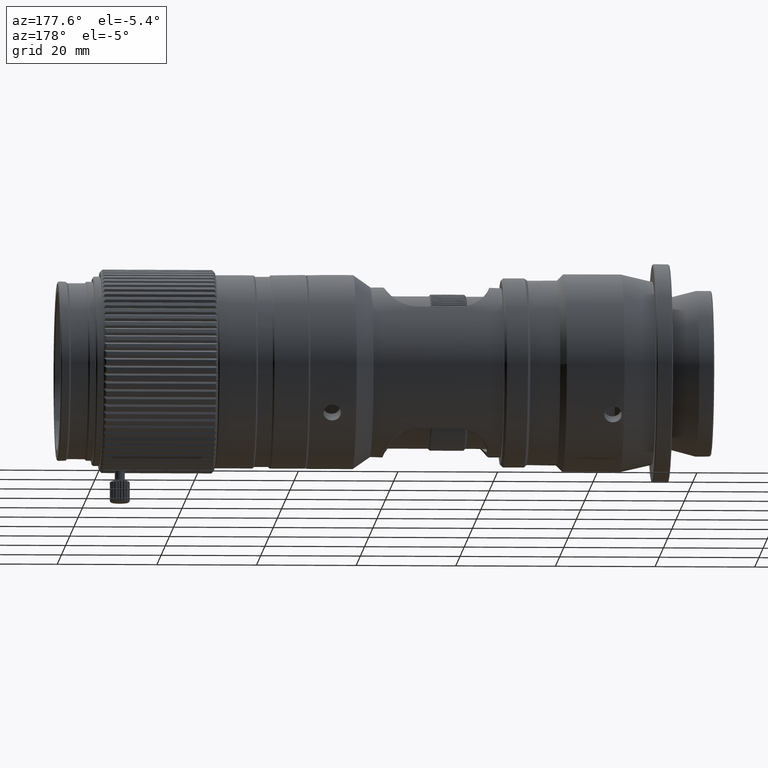
[diagram: clean part render]
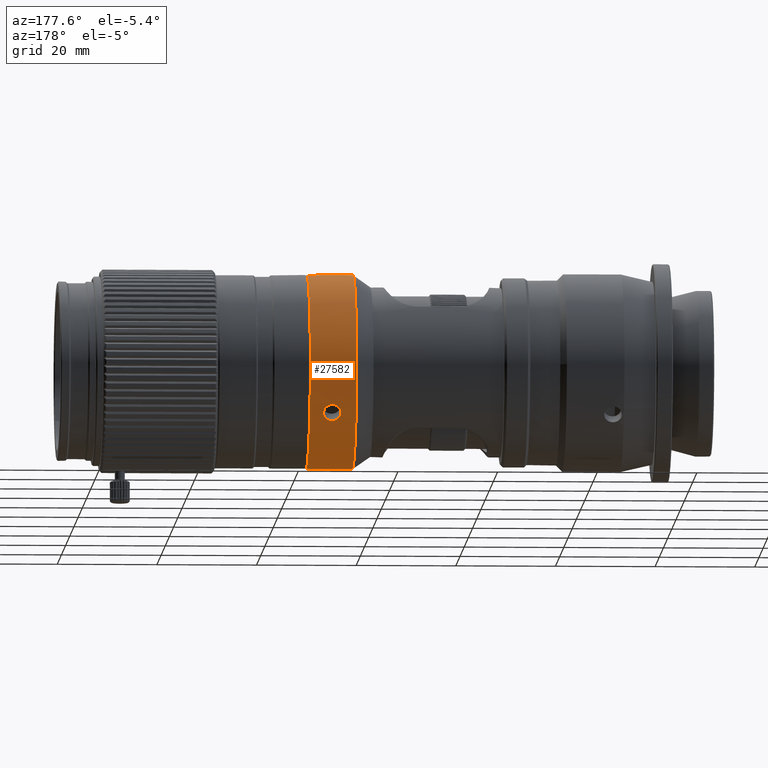
[diagram: same view with one face highlighted and labeled with its STEP entity id]
A machine part, auxiliary view. The second image highlights one B-rep face of the part: STEP entity #27582.
In plain terms, the highlighted cylindrical surface (bore or boss wall) has radius 19.5 mm, axis along (1, -0, 0).
Its self-contained STEP definition (entity closure, byte-faithful):
#478 = ORIENTED_EDGE ( 'NONE', *, *, #12250, .T. ) ;
#829 = FACE_BOUND ( 'NONE', #6289, .T. ) ;
#858 = EDGE_LOOP ( 'NONE', ( #8032 ) ) ;
#999 = CARTESIAN_POINT ( 'NONE',  ( 70.07379490684991197, 42.05459221979604933, 4.492853905267186754 ) ) ;
#1041 = CARTESIAN_POINT ( 'NONE',  ( 70.18771054272687593, 24.36039999712551563, 35.14038600535543111 ) ) ;
#1182 = CARTESIAN_POINT ( 'NONE',  ( 65.15708914656502770, 26.11023935412958252, 15.71905592086952907 ) ) ;
#1193 = FACE_BOUND ( 'NONE', #28471, .T. ) ;
#1229 = CARTESIAN_POINT ( 'NONE',  ( 70.18706113801275137, 27.84896984241966322, 35.14139661075519427 ) ) ;
#1362 = CARTESIAN_POINT ( 'NONE',  ( 71.61921687256733549, 43.27221541918056147, 6.460124031771034225 ) ) ;
#1400 = CARTESIAN_POINT ( 'NONE',  ( 69.72854287973886755, 27.86007871138743042, 35.14038600533253032 ) ) ;
#1405 = ORIENTED_EDGE ( 'NONE', *, *, #27595, .T. ) ;
#1540 = CARTESIAN_POINT ( 'NONE',  ( 69.72874267319788544, 43.79980922470844718, 7.513593337954950435 ) ) ;
#1599 = CARTESIAN_POINT ( 'NONE',  ( 74.45812653004784920, 26.11023935412957897, 15.71905592086952907 ) ) ;
#1921 = CARTESIAN_POINT ( 'NONE',  ( 68.20804687655545706, 9.166262394104030875, 6.066870601132161589 ) ) ;
#2280 = CARTESIAN_POINT ( 'NONE',  ( 69.84246244167948703, 10.16588666146286712, 4.492853659559094659 ) ) ;
#2414 = CARTESIAN_POINT ( 'NONE',  ( 69.95812653004817605, 43.80459204679520724, 7.523942572809223073 ) ) ;
#2615 = CARTESIAN_POINT ( 'NONE',  ( 70.07379490684898826, 8.415886787764771171, 7.523942300108700465 ) ) ;
#3131 = CARTESIAN_POINT ( 'NONE',  ( 65.15708914656502770, 6.610239354127227962, 15.71905592086952907 ) ) ;
#3350 = CARTESIAN_POINT ( 'NONE',  ( 71.69677242564434039, 25.88085548576956185, 35.21802765881768948 ) ) ;
#3452 = ORIENTED_EDGE ( 'NONE', *, *, #6412, .T. ) ;
#3479 = CARTESIAN_POINT ( 'NONE',  ( 68.21939614039901301, 42.88238294984343213, 5.771302396925304556 ) ) ;
#3512 = CARTESIAN_POINT ( 'NONE',  ( 71.47704216468960681, 25.23361692147433644, 35.19957431822407301 ) ) ;
#3597 = CARTESIAN_POINT ( 'NONE',  ( 69.95812653004816184, 10.16588666146286890, 4.492853659559094659 ) ) ;
#3687 = CARTESIAN_POINT ( 'NONE',  ( 69.50471790797725191, 24.41612736612321299, 35.14533930601878353 ) ) ;
#3824 = CARTESIAN_POINT ( 'NONE',  ( 71.70796593194224045, 42.88293048186979206, 5.770237959070459333 ) ) ;
#4004 = CARTESIAN_POINT ( 'NONE',  ( 71.69685695719532248, 43.11131822904258826, 6.167829925293569104 ) ) ;
#4039 = CARTESIAN_POINT ( 'NONE',  ( 68.56617989957898374, 27.17703649248084474, 35.19008588180271602 ) ) ;
#4176 = CARTESIAN_POINT ( 'NONE',  ( 68.25433327160101271, 43.22398378421782894, 6.369504003939394643 ) ) ;
#4382 = CARTESIAN_POINT ( 'NONE',  ( 71.47567879304338589, 26.98917114629115588, 35.19946833202516956 ) ) ;
#4565 = CARTESIAN_POINT ( 'NONE',  ( 70.41122752206636903, 8.439504652561746312, 7.473109430494253580 ) ) ;
#5086 = CARTESIAN_POINT ( 'NONE',  ( 68.38463662284807754, 8.848591570861469080, 6.647299860267561478 ) ) ;
#5251 = CARTESIAN_POINT ( 'NONE',  ( 69.08150538026583831, 10.03342094561782538, 4.683206946106120760 ) ) ;
#5761 = DIRECTION ( 'NONE',  ( -1.000000000000000000, 2.991356025220534629E-16, -2.465190328815661892E-32 ) ) ;
#6284 = CARTESIAN_POINT ( 'NONE',  ( 68.42895718678768446, 43.42195611137031364, 6.741370674503478710 ) ) ;
#6289 = EDGE_LOOP ( 'NONE', ( #1405 ) ) ;
#6317 = CARTESIAN_POINT ( 'NONE',  ( 70.41153444971378406, 27.80435151807208527, 35.14533929059518869 ) ) ;
#6412 = EDGE_CURVE ( 'NONE', #28563, #28563, #30160, .T. ) ;
#6451 = DIRECTION ( 'NONE',  ( 0.000000000000000000, 0.000000000000000000, -1.000000000000000000 ) ) ;
#6626 = CARTESIAN_POINT ( 'NONE',  ( 70.41122752206986490, 42.08680584383117917, 4.538724010972130962 ) ) ;
#6633 = B_SPLINE_CURVE_WITH_KNOTS ( 'NONE', 3,
 ( #19943, #28172, #1540, #25019, #17317, #24845, #20123, #14327, #25552, #30816, #6284, #4176, #27655, #22568, #3479, #12223, #11523, #30631, #22211, #9606, #20299, #30980, #32883, #8909, #16969, #19603, #30288, #999, #9255, #6626, #11697, #17144, #22397, #33076, #33245, #6816, #27827, #28008, #3824, #14510, #4004, #14689, #1362, #31331, #26247, #12413, #21153, #23095, #10460, #31665, #25902, #31155, #15737, #2414 ),
 .UNSPECIFIED., .T., .F.,
 ( 4, 2, 2, 2, 2, 2, 2, 2, 2, 2, 2, 2, 2, 2, 2, 2, 2, 2, 2, 2, 2, 2, 2, 2, 2, 2, 4 ),
 ( 0.000000000000000000, 0.0003420537383288069872, 0.0006841074766576139745, 0.001026161214986420853, 0.001368214953315227949, 0.002052322429972871197, 0.002736429906630514879, 0.003078483644959332383, 0.003420537383288149887, 0.003762591121616967824, 0.004104644859945785762, 0.004446698598274604133, 0.004788752336603421637, 0.005472859813261051441, 0.005814913551589846394, 0.006156967289918641346, 0.006499021028247436299, 0.006841074766576230384, 0.007525182243233841974, 0.008209289719891453563, 0.008551343458220261526, 0.008893397196549067754, 0.009235450934877875717, 0.009577504673206681945, 0.009919558411535488174, 0.01026161214986429614, 0.01094571962652194502 ),
 .UNSPECIFIED. ) ;
#6670 = CARTESIAN_POINT ( 'NONE',  ( 71.27644108891041697, 27.26691075445793189, 35.18489266199406984 ) ) ;
#6816 = CARTESIAN_POINT ( 'NONE',  ( 71.35692666306096044, 42.43455046851548929, 5.051675558385241516 ) ) ;
#6852 = CARTESIAN_POINT ( 'NONE',  ( 69.07717418262579656, 27.63941000730244824, 35.15920286302360864 ) ) ;
#7018 = CARTESIAN_POINT ( 'NONE',  ( 69.84517619526280896, 24.36015967868009469, 35.14036435094310917 ) ) ;
#7191 = CARTESIAN_POINT ( 'NONE',  ( 68.42895718679943684, 9.679477484959605249, 5.215512049186138199 ) ) ;
#7706 = CARTESIAN_POINT ( 'NONE',  ( 68.89133290666570986, 9.961707570402445810, 4.788412117140327773 ) ) ;
#8032 = ORIENTED_EDGE ( 'NONE', *, *, #13778, .F. ) ;
#8054 = CARTESIAN_POINT ( 'NONE',  ( 70.18945470678553988, 10.16588666146286890, 4.492853659559094659 ) ) ;
#8859 = CARTESIAN_POINT ( 'NONE',  ( 71.47687393295743163, 9.678060438618503625, 5.219412840321658642 ) ) ;
#8909 = CARTESIAN_POINT ( 'NONE',  ( 69.07919887396973024, 42.18783047183382706, 4.684333184738014744 ) ) ;
#9086 = FACE_OUTER_BOUND ( 'NONE', #15524, .T. ) ;
#9119 = CARTESIAN_POINT ( 'NONE',  ( 71.02458574713325845, 27.50241612376452593, 35.16939965471883767 ) ) ;
#9205 = CARTESIAN_POINT ( 'NONE',  ( 71.48729657715028907, 8.798523206933545282, 6.741369504913817146 ) ) ;
#9255 = CARTESIAN_POINT ( 'NONE',  ( 70.18751444422679242, 42.06116365219143916, 4.502170771558888340 ) ) ;
#9292 = CARTESIAN_POINT ( 'NONE',  ( 70.41804917717000478, 24.40644615998366618, 35.14467727046672252 ) ) ;
#9432 = CYLINDRICAL_SURFACE ( 'NONE', #32926, 19.49999999999999645 ) ;
#9471 = CARTESIAN_POINT ( 'NONE',  ( 69.08125860185757006, 24.59149181203768109, 35.15992610329546864 ) ) ;
#9492 = DIRECTION ( 'NONE',  ( -1.000000000000000000, 3.500072587090658521E-16, -2.465190328815661892E-32 ) ) ;
#9606 = CARTESIAN_POINT ( 'NONE',  ( 68.56595224969292701, 42.43942932988120731, 5.059948853037987249 ) ) ;
#9642 = CARTESIAN_POINT ( 'NONE',  ( 70.52064364052661460, 27.77132991372726778, 35.14822754141417249 ) ) ;
#9805 = CARTESIAN_POINT ( 'NONE',  ( 70.18751444422497343, 8.420669714459300792, 7.513592839569271931 ) ) ;
#9978 = CARTESIAN_POINT ( 'NONE',  ( 71.02492223610236977, 8.569758953672838686, 7.199337612002087106 ) ) ;
#10460 = CARTESIAN_POINT ( 'NONE',  ( 71.02643860588568714, 43.65019637851938938, 7.198260793676701574 ) ) ;
#10502 = CARTESIAN_POINT ( 'NONE',  ( 68.63821849157534416, 8.674809948038737062, 6.986215112189682941 ) ) ;
#11523 = CARTESIAN_POINT ( 'NONE',  ( 68.29703647377331777, 42.70969715062488348, 5.485813859868279962 ) ) ;
#11560 = CARTESIAN_POINT ( 'NONE',  ( 68.64004495430565100, 27.26703509442617701, 35.18488129127201347 ) ) ;
#11697 = CARTESIAN_POINT ( 'NONE',  ( 70.52238423562108949, 42.10618855728080945, 4.566408187190802437 ) ) ;
#11863 = DIRECTION ( 'NONE',  ( 0.000000000000000000, -1.000000000000000000, 0.000000000000000000 ) ) ;
#11906 = CARTESIAN_POINT ( 'NONE',  ( 70.83908015949138814, 24.58106938564199595, 35.15920291809720766 ) ) ;
#12085 = CARTESIAN_POINT ( 'NONE',  ( 68.26395835265002177, 26.56334050868623109, 35.21411209137370690 ) ) ;
#12223 = CARTESIAN_POINT ( 'NONE',  ( 68.26401468619333457, 42.76674435210632197, 5.578866464021822402 ) ) ;
#12250 = EDGE_CURVE ( 'NONE', #29923, #29923, #18763, .T. ) ;
#12413 = CARTESIAN_POINT ( 'NONE',  ( 71.35030193156001133, 43.50589117283462315, 6.907114787801980071 ) ) ;
#12612 = CARTESIAN_POINT ( 'NONE',  ( 70.73426602740237001, 8.491380889035161417, 7.362754779318104070 ) ) ;
#12785 = CARTESIAN_POINT ( 'NONE',  ( 68.29703647378589437, 8.948262867970678158, 6.460124810573783627 ) ) ;
#12967 = CARTESIAN_POINT ( 'NONE',  ( 69.95812653004816184, 10.16588666146286890, 4.492853659559094659 ) ) ;
#13302 = CARTESIAN_POINT ( 'NONE',  ( 71.35692666305035914, 8.709861411187430846, 6.915477977785801755 ) ) ;
#13778 = EDGE_CURVE ( 'NONE', #32214, #32214, #23789, .T. ) ;
#14033 = CARTESIAN_POINT ( 'NONE',  ( 71.65229565745404727, 25.65714170783025239, 35.21411217416827100 ) ) ;
#14111 = CARTESIAN_POINT ( 'NONE',  ( 70.83705676272900575, 10.03264738112484267, 4.684334430654736536 ) ) ;
#14189 = CARTESIAN_POINT ( 'NONE',  ( 71.35007472692137753, 25.04344424174199801, 35.19008599396246240 ) ) ;
#14327 = CARTESIAN_POINT ( 'NONE',  ( 68.89133290665749598, 43.65072045975615822, 7.199339064235977581 ) ) ;
#14364 = CARTESIAN_POINT ( 'NONE',  ( 68.38572607607733289, 25.33356921996190891, 35.20387112215994563 ) ) ;
#14510 = CARTESIAN_POINT ( 'NONE',  ( 71.70820618342388286, 43.05421622101498258, 6.066870439832094952 ) ) ;
#14557 = CARTESIAN_POINT ( 'NONE',  ( 71.66242562599607879, 26.56904561697340839, 35.21481074912161091 ) ) ;
#14689 = CARTESIAN_POINT ( 'NONE',  ( 71.65223855476425285, 43.22015317459462835, 6.364193549576292241 ) ) ;
#14723 = CARTESIAN_POINT ( 'NONE',  ( 69.72919155584746420, 24.37150890231629319, 35.14139661410138871 ) ) ;
#14812 = EDGE_LOOP ( 'NONE', ( #3452 ) ) ;
#14859 = FACE_OUTER_BOUND ( 'NONE', #858, .T. ) ;
#15077 = CARTESIAN_POINT ( 'NONE',  ( 71.53052559014122380, 26.88691228698944613, 35.20387100936596170 ) ) ;
#15416 = CARTESIAN_POINT ( 'NONE',  ( 68.55932749556367867, 9.785929066706884782, 5.051674291824166829 ) ) ;
#15494 = ORIENTED_EDGE ( 'NONE', *, *, #27213, .T. ) ;
#15524 = EDGE_LOOP ( 'NONE', ( #478 ) ) ;
#15581 = CARTESIAN_POINT ( 'NONE',  ( 69.95812653004817605, 10.16588666146286535, 4.492853659559094659 ) ) ;
#15737 = CARTESIAN_POINT ( 'NONE',  ( 70.18945470678728782, 43.80459204679520013, 7.523942572809226625 ) ) ;
#15771 = CARTESIAN_POINT ( 'NONE',  ( 68.25433327161404407, 9.456417665008830298, 5.572894449026144947 ) ) ;
#15937 = CARTESIAN_POINT ( 'NONE',  ( 69.72680336153541703, 8.415886408887647718, 7.523943118155420606 ) ) ;
#16969 = CARTESIAN_POINT ( 'NONE',  ( 69.18145769171991333, 42.15658544601902946, 4.639041321919038730 ) ) ;
#17003 = CARTESIAN_POINT ( 'NONE',  ( 68.25382645429563411, 25.65143657339129746, 35.21481083601376838 ) ) ;
#17144 = CARTESIAN_POINT ( 'NONE',  ( 70.73426602740831015, 42.15643765693928913, 4.638827475199744477 ) ) ;
#17179 = CARTESIAN_POINT ( 'NONE',  ( 71.70812653004821868, 26.11023935412958608, 35.21905592086952907 ) ) ;
#17317 = CARTESIAN_POINT ( 'NONE',  ( 69.39387221592008359, 43.76669070947291829, 7.442482480918648946 ) ) ;
#17365 = CARTESIAN_POINT ( 'NONE',  ( 71.70812653004821868, 26.34156744190340049, 35.21905592086952907 ) ) ;
#17528 = CARTESIAN_POINT ( 'NONE',  ( 71.11297590556058879, 27.43015030730950343, 35.17450564160657223 ) ) ;
#17702 = CARTESIAN_POINT ( 'NONE',  ( 68.63981037044885625, 24.95356975750582507, 35.18489277021963346 ) ) ;
#17874 = CARTESIAN_POINT ( 'NONE',  ( 68.43937986427469866, 8.801191658018616693, 6.738194236073396404 ) ) ;
#18052 = CARTESIAN_POINT ( 'NONE',  ( 68.26401468620620960, 9.000325186314737991, 6.364194182799950639 ) ) ;
#18396 = CARTESIAN_POINT ( 'NONE',  ( 68.20828712842842378, 9.337548412665558573, 5.770237636477527410 ) ) ;
#18575 = CARTESIAN_POINT ( 'NONE',  ( 69.49932425648306378, 8.435043785862456289, 7.482233276298646985 ) ) ;
#18746 = CARTESIAN_POINT ( 'NONE',  ( 70.73479824539332128, 10.06389244512166492, 4.639042504724003813 ) ) ;
#18763 = CIRCLE ( 'NONE', #32738, 19.49999999999999645 ) ;
#18867 = VERTEX_POINT ( 'NONE', #34443 ) ;
#19603 = CARTESIAN_POINT ( 'NONE',  ( 69.49932425647955370, 42.08113479493397335, 4.530298864185369645 ) ) ;
#19772 = FACE_BOUND ( 'NONE', #14812, .T. ) ;
#19805 = CARTESIAN_POINT ( 'NONE',  ( 70.83499319319470544, 27.62898761328224850, 35.15992604666694632 ) ) ;
#19892 = CARTESIAN_POINT ( 'NONE',  ( 71.53161700841518211, 9.623043622175202927, 5.305909466479667103 ) ) ;
#19943 = CARTESIAN_POINT ( 'NONE',  ( 69.95812653004817605, 43.80459204679520724, 7.523942572809223073 ) ) ;
#19980 = CARTESIAN_POINT ( 'NONE',  ( 68.80327564247920691, 24.79032970574613870, 35.17450573117650947 ) ) ;
#20123 = CARTESIAN_POINT ( 'NONE',  ( 69.08150538025913079, 43.70597412287381189, 7.314047254481673477 ) ) ;
#20168 = CARTESIAN_POINT ( 'NONE',  ( 68.44057280143451294, 25.23131006842518786, 35.19946844634098682 ) ) ;
#20299 = CARTESIAN_POINT ( 'NONE',  ( 68.63821849156536814, 42.39081604470485587, 4.985951533656164614 ) ) ;
#20331 = CARTESIAN_POINT ( 'NONE',  ( 68.56737288458666058, 25.04192745859836222, 35.19000090424619742 ) ) ;
#20504 = CARTESIAN_POINT ( 'NONE',  ( 70.52238423561674097, 8.453788495725028440, 7.442481420143520765 ) ) ;
#20677 = CARTESIAN_POINT ( 'NONE',  ( 71.11492071848206820, 8.602180298271475678, 7.132764382266877590 ) ) ;
#21153 = CARTESIAN_POINT ( 'NONE',  ( 71.27803590985278959, 43.54566806272900692, 6.986213720055509668 ) ) ;
#21545 = CARTESIAN_POINT ( 'NONE',  ( 71.27803590984267146, 9.829661806666759816, 4.985952833783287907 ) ) ;
#21923 = CARTESIAN_POINT ( 'NONE',  ( 71.70812653004821868, 26.11023935412958608, 35.21905592086952907 ) ) ;
#22211 = CARTESIAN_POINT ( 'NONE',  ( 68.43937986426324471, 42.54241756910147387, 5.219411743132507553 ) ) ;
#22346 = CARTESIAN_POINT ( 'NONE',  ( 71.69685695718202112, 9.338095567205497716, 5.771302721260971325 ) ) ;
#22397 = CARTESIAN_POINT ( 'NONE',  ( 70.83475025056191043, 42.18705861233761567, 4.683208183601235142 ) ) ;
#22523 = CARTESIAN_POINT ( 'NONE',  ( 71.61921687255457414, 9.510781093720776624, 5.485814613967169073 ) ) ;
#22568 = CARTESIAN_POINT ( 'NONE',  ( 68.20804687654212728, 42.94126552308119926, 5.871234092236716329 ) ) ;
#22604 = CARTESIAN_POINT ( 'NONE',  ( 68.38546681893193124, 26.88637981665555188, 35.20389214786794696 ) ) ;
#22779 = CARTESIAN_POINT ( 'NONE',  ( 71.27620967547127862, 24.95344538373159082, 35.18488139742269993 ) ) ;
#22968 = CARTESIAN_POINT ( 'NONE',  ( 70.07107668364372444, 27.86031902945218164, 35.14036435095455602 ) ) ;
#23095 = CARTESIAN_POINT ( 'NONE',  ( 71.11479632547734298, 43.61840509658883747, 7.132971860510775919 ) ) ;
#23301 = CARTESIAN_POINT ( 'NONE',  ( 70.83475025055523133, 8.514505232249431899, 7.314045899854636268 ) ) ;
#23325 = DIRECTION ( 'NONE',  ( 0.000000000000000000, 0.000000000000000000, -1.000000000000000000 ) ) ;
#23654 = CARTESIAN_POINT ( 'NONE',  ( 69.39387221592441790, 10.11429082115268585, 4.566407226462452229 ) ) ;
#23789 = CIRCLE ( 'NONE', #28256, 19.50000000000235545 ) ;
#23822 = CARTESIAN_POINT ( 'NONE',  ( 69.72874267319960495, 10.15931537221279690, 4.502170322415111947 ) ) ;
#23997 = CARTESIAN_POINT ( 'NONE',  ( 71.70820618341055308, 9.279213092057227996, 5.871234253550007942 ) ) ;
#24166 = CARTESIAN_POINT ( 'NONE',  ( 74.45812653004784920, 26.11023935412957897, -3.780944079130467372 ) ) ;
#24719 = CARTESIAN_POINT ( 'NONE',  ( 71.61862922085288119, 25.54598458388145232, 35.21117877659180095 ) ) ;
#24845 = CARTESIAN_POINT ( 'NONE',  ( 69.18198986279190876, 43.72909842613013609, 7.362756059597838743 ) ) ;
#25019 = CARTESIAN_POINT ( 'NONE',  ( 69.50502914447697833, 43.78097447002866005, 7.473110318973215094 ) ) ;
#25245 = CARTESIAN_POINT ( 'NONE',  ( 69.49820460526993315, 27.81403269490257202, 35.14467725638942142 ) ) ;
#25415 = CARTESIAN_POINT ( 'NONE',  ( 68.88206151133012156, 27.50904090396161550, 35.16949265548505821 ) ) ;
#25552 = CARTESIAN_POINT ( 'NONE',  ( 68.80133416104359867, 43.61829912225041284, 7.132765834292729146 ) ) ;
#25902 = CARTESIAN_POINT ( 'NONE',  ( 70.73479824539927563, 43.72898590130282770, 7.362518567834888117 ) ) ;
#25937 = CARTESIAN_POINT ( 'NONE',  ( 68.80133416105240940, 9.920264130812915582, 4.849776434016247251 ) ) ;
#26109 = CARTESIAN_POINT ( 'NONE',  ( 68.88981651168435860, 8.570281630664076999, 7.198262233047774572 ) ) ;
#26235 = VERTEX_POINT ( 'NONE', #27102 ) ;
#26247 = CARTESIAN_POINT ( 'NONE',  ( 71.47687393296907032, 43.41928645032265166, 6.738193080805976010 ) ) ;
#26461 = CARTESIAN_POINT ( 'NONE',  ( 68.56595224970348568, 8.714586863846808029, 6.907116112575217848 ) ) ;
#27102 = CARTESIAN_POINT ( 'NONE',  ( 71.70812653004819026, 26.11023935412958252, 35.21905592086952907 ) ) ;
#27213 = EDGE_CURVE ( 'NONE', #26235, #26235, #30090, .T. ) ;
#27353 = CARTESIAN_POINT ( 'NONE',  ( 71.70812653004821868, 25.99457531024269485, 35.21905592086952907 ) ) ;
#27450 = CARTESIAN_POINT ( 'NONE',  ( 71.35030193154931055, 9.781048566870651939, 5.059950097041631345 ) ) ;
#27494 = DIRECTION ( 'NONE',  ( 1.000000000000000000, -3.500072587090658521E-16, 2.465190328815661892E-32 ) ) ;
#27526 = CARTESIAN_POINT ( 'NONE',  ( 71.53078761491308057, 25.33410164465474068, 35.20389225901331542 ) ) ;
#27582 = ADVANCED_FACE ( 'NONE', ( #14859, #9086, #19772, #1193, #829 ), #9432, .T. ) ;
#27595 = EDGE_CURVE ( 'NONE', #18867, #18867, #6633, .T. ) ;
#27655 = CARTESIAN_POINT ( 'NONE',  ( 68.20828712841505137, 43.11251419679219055, 6.167888617953879660 ) ) ;
#27692 = CARTESIAN_POINT ( 'NONE',  ( 68.21948116661152994, 26.33962716934532367, 35.21802761113063696 ) ) ;
#27827 = CARTESIAN_POINT ( 'NONE',  ( 71.48729657716194197, 42.54100193116437367, 5.215513162283858861 ) ) ;
#27956 = CARTESIAN_POINT ( 'NONE',  ( 71.66191993921390235, 8.996495282851711295, 6.369503353654060618 ) ) ;
#28008 = CARTESIAN_POINT ( 'NONE',  ( 71.66191993922686265, 42.76406142700515289, 5.572895084901728247 ) ) ;
#28046 = CARTESIAN_POINT ( 'NONE',  ( 68.29762497458307280, 26.67449742348803454, 35.21117867960683157 ) ) ;
#28172 = CARTESIAN_POINT ( 'NONE',  ( 69.84246244167863438, 43.80459204679520724, 7.523942572809221296 ) ) ;
#28209 = CARTESIAN_POINT ( 'NONE',  ( 71.34887862288299232, 27.17855325110448561, 35.19000079320453267 ) ) ;
#28256 = AXIS2_PLACEMENT_3D ( 'NONE', #1182, #5761, #11863 ) ;
#28384 = CARTESIAN_POINT ( 'NONE',  ( 68.43921235122425628, 26.98686428751705435, 35.19957420453219754 ) ) ;
#28471 = EDGE_LOOP ( 'NONE', ( #15494 ) ) ;
#28563 = VERTEX_POINT ( 'NONE', #15581 ) ;
#29081 = CARTESIAN_POINT ( 'NONE',  ( 68.21939614041217226, 9.109160293940531616, 6.167830253051253209 ) ) ;
#29923 = VERTEX_POINT ( 'NONE', #24166 ) ;
#30058 = CARTESIAN_POINT ( 'NONE',  ( 70.41693238317670023, 10.13934333205707539, 4.530299691649074312 ) ) ;
#30090 = B_SPLINE_CURVE_WITH_KNOTS ( 'NONE', 3,
 ( #21923, #27353, #3350, #14033, #24719, #27526, #3512, #14189, #22779, #30668, #11906, #9292, #1041, #7018, #14723, #3687, #31015, #33457, #9471, #33644, #19980, #17702, #20331, #20168, #14364, #17003, #30325, #30853, #27692, #12085, #28046, #22604, #28384, #4039, #11560, #25415, #6852, #25245, #1400, #22968, #1229, #6317, #9642, #33282, #19805, #9119, #17528, #6670, #28209, #4382, #15077, #14557, #17365, #17179 ),
 .UNSPECIFIED., .T., .F.,
 ( 4, 2, 2, 2, 2, 2, 2, 2, 2, 2, 2, 2, 2, 2, 2, 2, 2, 2, 2, 2, 2, 2, 2, 2, 2, 2, 4 ),
 ( 0.000000000000000000, 0.0003420537722466805968, 0.0006841075444933611936, 0.001026161316740041574, 0.001368215088986722387, 0.002052322633480111770, 0.002736430177973501587, 0.003078483950220217528, 0.003420537722466933470, 0.003762591494713648978, 0.004104645266960364920, 0.004446699039207081296, 0.004788752811453796804, 0.005472860355947244300, 0.005814914128193966747, 0.006156967900440690061, 0.006499021672687414243, 0.006841075444934136690, 0.007525182989427582451, 0.008209290533921028213, 0.008551344306167732445, 0.008893398078414433208, 0.009235451850661135706, 0.009577505622907838204, 0.009919559395154540701, 0.01026161316740124493, 0.01094572071189466554 ),
 .UNSPECIFIED. ) ;
#30160 = B_SPLINE_CURVE_WITH_KNOTS ( 'NONE', 3,
 ( #12967, #2280, #23822, #34500, #23654, #34323, #5251, #7706, #25937, #15416, #7191, #15771, #18396, #1921, #29081, #18052, #12785, #5086, #17874, #26461, #10502, #33974, #26109, #31874, #31370, #18575, #15937, #2615, #9805, #4565, #20504, #12612, #23301, #9978, #20677, #13302, #9205, #27956, #33031, #23997, #22346, #34676, #22523, #19892, #8859, #27450, #21545, #30578, #32049, #14111, #18746, #30058, #8054, #3597 ),
 .UNSPECIFIED., .T., .F.,
 ( 4, 2, 2, 2, 2, 2, 2, 2, 2, 2, 2, 2, 2, 2, 2, 2, 2, 2, 2, 2, 2, 2, 2, 2, 2, 2, 4 ),
 ( 0.000000000000000000, 0.0003420537383261814833, 0.0006841074766523629665, 0.001026161214978544558, 0.001368214953304725933, 0.002052322429957119908, 0.002736429906609513883, 0.003078483644935711954, 0.003420537383261909592, 0.003762591121588107664, 0.004104644859914305735, 0.004446698598240502939, 0.004788752336566701011, 0.005472859813219136185, 0.005814913551545352471, 0.006156967289871569625, 0.006499021028197785911, 0.006841074766524003065, 0.007525182243176407014, 0.008209289719828810963, 0.008551343458155015106, 0.008893397196481220984, 0.009235450934807425127, 0.009577504673133629270, 0.009919558411459833414, 0.01026161214978603929, 0.01094571962643844931 ),
 .UNSPECIFIED. ) ;
#30288 = CARTESIAN_POINT ( 'NONE',  ( 69.72680336153371172, 42.05459170078538733, 4.492853168126607066 ) ) ;
#30325 = CARTESIAN_POINT ( 'NONE',  ( 68.20812594776113258, 25.87891613820659842, 35.21905597312608904 ) ) ;
#30578 = CARTESIAN_POINT ( 'NONE',  ( 71.11479632546846119, 9.920389567582340362, 4.849581644437976458 ) ) ;
#30631 = CARTESIAN_POINT ( 'NONE',  ( 68.38463662283619726, 42.59743445118938610, 5.305908459695197088 ) ) ;
#30668 = CARTESIAN_POINT ( 'NONE',  ( 71.03419301800252583, 24.71143887289867180, 35.16949273622178396 ) ) ;
#30816 = CARTESIAN_POINT ( 'NONE',  ( 68.55932749555296368, 43.51061798047162910, 6.915479327252109343 ) ) ;
#30853 = CARTESIAN_POINT ( 'NONE',  ( 68.20812682120003956, 26.22590756968152093, 35.21905589474052789 ) ) ;
#30980 = CARTESIAN_POINT ( 'NONE',  ( 68.80145858880885612, 42.30008822150749381, 4.849580275007671304 ) ) ;
#31015 = CARTESIAN_POINT ( 'NONE',  ( 69.39560855864708344, 24.44914907298115025, 35.14822756553448357 ) ) ;
#31155 = CARTESIAN_POINT ( 'NONE',  ( 70.41693238318019610, 43.78543449643719754, 7.482232359197458216 ) ) ;
#31331 = CARTESIAN_POINT ( 'NONE',  ( 71.53161700842721871, 43.37188658294957833, 6.647298807050963987 ) ) ;
#31370 = CARTESIAN_POINT ( 'NONE',  ( 69.18145769172579662, 8.491492191186729599, 7.362519866861005013 ) ) ;
#31665 = CARTESIAN_POINT ( 'NONE',  ( 70.83705676273572749, 43.70538447485883182, 7.312813585704996733 ) ) ;
#31874 = CARTESIAN_POINT ( 'NONE',  ( 69.07919887397636671, 8.515093582065066613, 7.312814949354359939 ) ) ;
#32049 = CARTESIAN_POINT ( 'NONE',  ( 71.02643860587748748, 9.961035801324330308, 4.789405120084674117 ) ) ;
#32214 = VERTEX_POINT ( 'NONE', #3131 ) ;
#32738 = AXIS2_PLACEMENT_3D ( 'NONE', #1599, #9492, #23325 ) ;
#32883 = CARTESIAN_POINT ( 'NONE',  ( 68.88981651167628684, 42.25944200992885413, 4.789403794964213645 ) ) ;
#32926 = AXIS2_PLACEMENT_3D ( 'NONE', #33419, #27494, #6451 ) ;
#33031 = CARTESIAN_POINT ( 'NONE',  ( 71.70796593192885382, 9.107964697704309387, 6.167888295334529758 ) ) ;
#33076 = CARTESIAN_POINT ( 'NONE',  ( 71.02492223611051259, 42.25877204293133360, 4.788413453934685649 ) ) ;
#33245 = CARTESIAN_POINT ( 'NONE',  ( 71.11492071849085050, 42.30021547879496779, 4.849777776850064726 ) ) ;
#33282 = CARTESIAN_POINT ( 'NONE',  ( 70.73257690040820478, 27.68373036796308284, 35.15551798928999716 ) ) ;
#33419 = CARTESIAN_POINT ( 'NONE',  ( 65.15708914656585193, 26.11023935412958252, 15.71905592086952907 ) ) ;
#33457 = CARTESIAN_POINT ( 'NONE',  ( 69.18367500273204485, 24.53674889590854136, 35.15551803458420466 ) ) ;
#33644 = CARTESIAN_POINT ( 'NONE',  ( 68.89166587026117838, 24.71806367511985059, 35.16939973339175651 ) ) ;
#33974 = CARTESIAN_POINT ( 'NONE',  ( 68.80145858881763843, 8.602072885302421312, 7.132973341231828357 ) ) ;
#34323 = CARTESIAN_POINT ( 'NONE',  ( 69.18198986279789153, 10.06404185660792550, 4.638826309483512489 ) ) ;
#34443 = CARTESIAN_POINT ( 'NONE',  ( 69.95812653004817605, 43.80459204679521434, 7.523942572809223961 ) ) ;
#34500 = CARTESIAN_POINT ( 'NONE',  ( 69.50502914448044578, 10.13367342669286408, 4.538723207932478410 ) ) ;
#34676 = CARTESIAN_POINT ( 'NONE',  ( 71.65223855475126413, 9.453733981436361233, 5.578867081453356747 ) ) ;